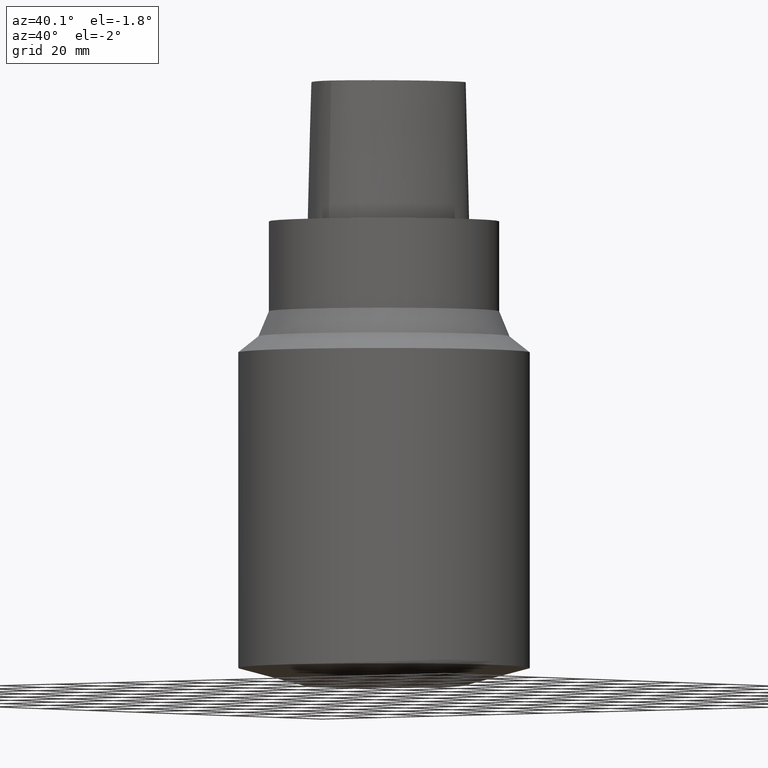
[diagram: clean part render]
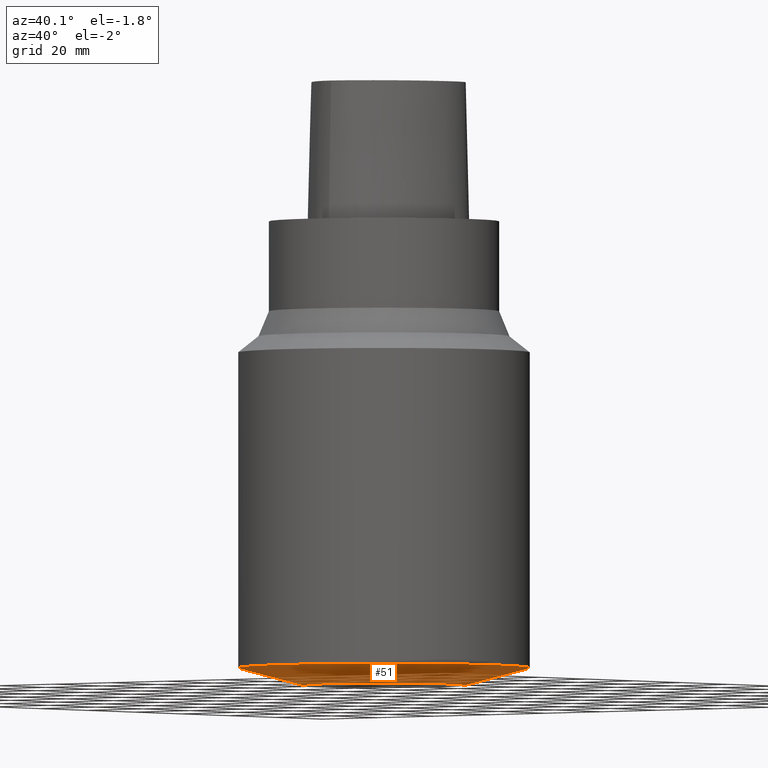
[diagram: same view with one face highlighted and labeled with its STEP entity id]
A machine part, auxiliary view. The second image highlights one B-rep face of the part: STEP entity #51.
In plain terms, the highlighted conical surface has half-angle 75 deg.
Its self-contained STEP definition (entity closure, byte-faithful):
#51=ADVANCED_FACE('Unnamed[1]',(#131,#132),#133,.T.);
#105=EDGE_CURVE('Unnamed[1]',#209,#209,#210,.T.);
#110=EDGE_CURVE('Unnamed[1]',#217,#217,#218,.T.);
#131=FACE_BOUND('',#230,.T.);
#132=FACE_BOUND('',#231,.T.);
#133=CONICAL_SURFACE('',#232,30.999999999998,1.30899693899575);
#209=VERTEX_POINT('',#532);
#210=CIRCLE('',#533,21.9999999999999);
#217=VERTEX_POINT('',#542);
#218=CIRCLE('',#543,39.9999999999961);
#230=EDGE_LOOP('',(#550));
#231=EDGE_LOOP('',(#551));
#232=AXIS2_PLACEMENT_3D('',#552,#553,#554);
#532=CARTESIAN_POINT('',(7.7765071745857E-015,21.9999999999999,-127.0));
#533=AXIS2_PLACEMENT_3D('',#627,#628,#629);
#542=CARTESIAN_POINT('',(7.48117836582536E-015,39.9999999999961,-122.176914536241));
#543=AXIS2_PLACEMENT_3D('',#636,#637,#638);
#550=ORIENTED_EDGE('',*,*,#105,.F.);
#551=ORIENTED_EDGE('',*,*,#110,.T.);
#552=CARTESIAN_POINT('',(7.62884277020553E-015,1.52576855404111E-014,-124.58845726812));
#553=DIRECTION('',(-6.12323399573677E-017,-1.22464679914735E-016,1.0));
#554=DIRECTION('',(-1.23259516440783E-032,1.0,1.22464679914735E-016));
#627=CARTESIAN_POINT('',(7.7765071745857E-015,1.55530143491714E-014,-127.0));
#628=DIRECTION('',(6.12323399573677E-017,1.22464679914735E-016,-1.0));
#629=DIRECTION('',(-1.23259516440783E-032,1.0,1.22464679914735E-016));
#636=CARTESIAN_POINT('',(7.48117836582536E-015,1.49623567316507E-014,-122.176914536241));
#637=DIRECTION('',(6.12323399573676E-017,1.22464679914735E-016,-1.0));
#638=DIRECTION('',(-1.23259516440783E-032,1.0,1.22464679914735E-016));